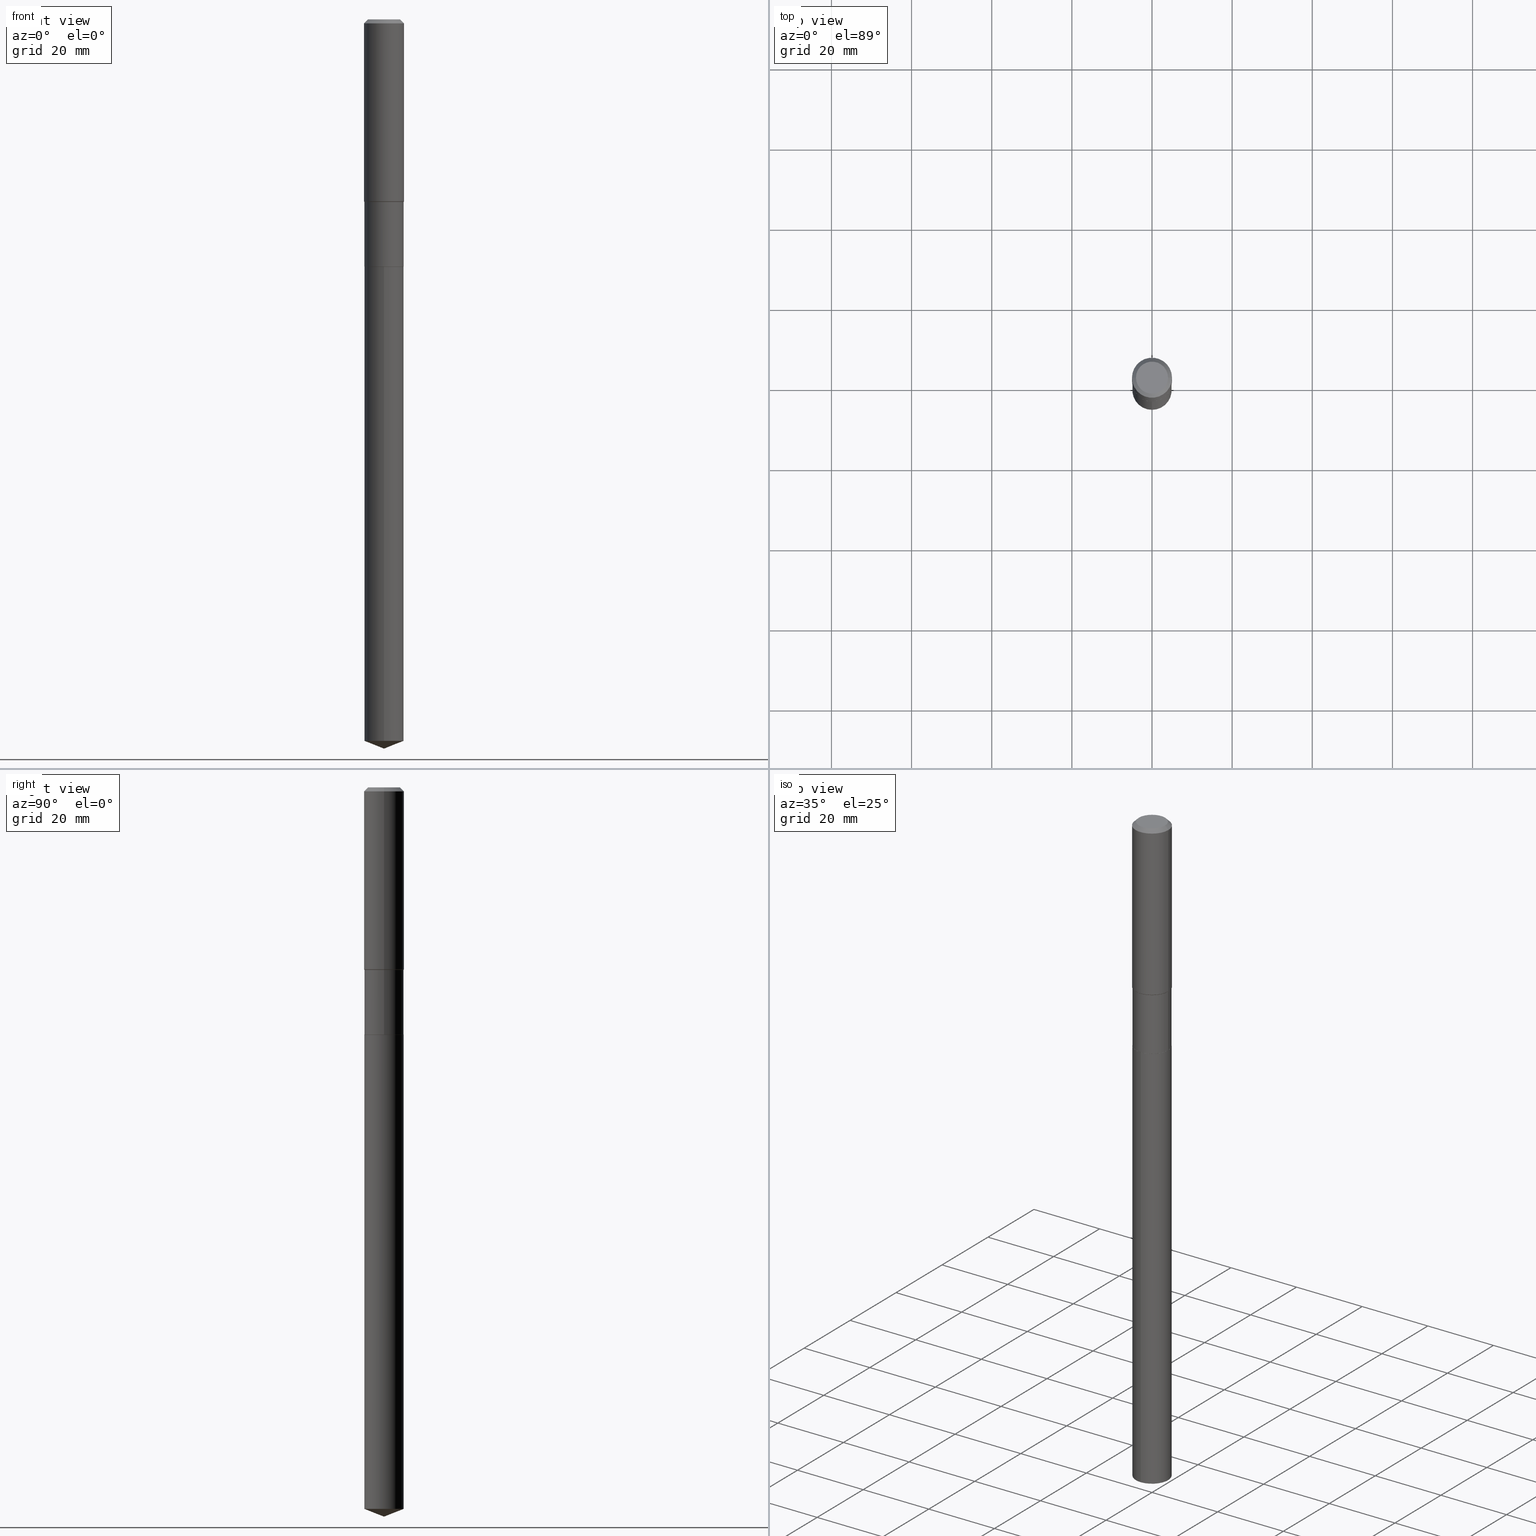
[diagram: canonical four-view strip — front | top / right | iso, engineering-drawing reading convention]
A machine part, canonical four-view strip (front | top / right | iso — engineering-drawing reading convention). The complete STEP part file that produces these views, byte-faithful:
ISO-10303-21;
HEADER;
FILE_DESCRIPTION (( 'STEP AP203' ),
    '1' );
FILE_NAME ('66777.STEP',
    '2024-04-25T05:58:49',
    ( '' ),
    ( '' ),
    'SwSTEP 2.0',
    'SolidWorks 2023',
    '' );
FILE_SCHEMA (( 'CONFIG_CONTROL_DESIGN' ));
ENDSEC;

DATA;
#1 = CARTESIAN_POINT ( 'NONE',  ( 0.1923999999999999877, -9.823282746835183179E-15, -2.428699999999999637 ) ) ;
#2 = FACE_OUTER_BOUND ( 'NONE', #372, .T. ) ;
#3 = ADVANCED_FACE ( 'NONE', ( #223 ), #257, .T. ) ;
#4 = DIRECTION ( 'NONE',  ( 1.000000000000000000, -6.982962677686261977E-15, 0.000000000000000000 ) ) ;
#5 = CARTESIAN_POINT ( 'NONE',  ( 5.939310089581840960E-29, -8.479760727648346701E-15, -2.428699999999999637 ) ) ;
#6 = CYLINDRICAL_SURFACE ( 'NONE', #9, 0.1968500000000001082 ) ;
#7 = EDGE_CURVE ( 'NONE', #178, #410, #399, .T. ) ;
#8 = UNCERTAINTY_MEASURE_WITH_UNIT (LENGTH_MEASURE( 1.000000000000000082E-05 ), #351, 'distance_accuracy_value', 'NONE');
#9 = AXIS2_PLACEMENT_3D ( 'NONE', #18, #489, #70 ) ;
#10 = CC_DESIGN_SECURITY_CLASSIFICATION ( #470, ( #58 ) ) ;
#11 = DIRECTION ( 'NONE',  ( 1.000000000000000000, -6.982962677686267499E-15, 0.000000000000000000 ) ) ;
#12 =( NAMED_UNIT ( * ) PLANE_ANGLE_UNIT ( ) SI_UNIT ( $, .RADIAN. ) );
#13 = APPROVAL_DATE_TIME ( #361, #352 ) ;
#14 = VECTOR ( 'NONE', #111, 39.37007874015748143 ) ;
#15 = EDGE_CURVE ( 'NONE', #71, #362, #364, .T. ) ;
#16 = CLOSED_SHELL ( 'NONE', ( #197, #17, #90, #212, #331, #56, #472, #320, #395, #439, #381, #307 ) ) ;
#17 = ADVANCED_FACE ( 'NONE', ( #301 ), #471, .T. ) ;
#18 = CARTESIAN_POINT ( 'NONE',  ( 0.000000000000000000, 0.000000000000000000, 0.000000000000000000 ) ) ;
#19 = VERTEX_POINT ( 'NONE', #447 ) ;
#20 = AXIS2_PLACEMENT_3D ( 'NONE', #457, #387, #392 ) ;
#21 = ORIENTED_EDGE ( 'NONE', *, *, #318, .T. ) ;
#22 = PERSON_AND_ORGANIZATION_ROLE ( 'design_supplier' ) ;
#23 = EDGE_LOOP ( 'NONE', ( #438, #140, #378, #309 ) ) ;
#24 = PLANE ( 'NONE',  #267 ) ;
#25 = VERTEX_POINT ( 'NONE', #380 ) ;
#26 = DIRECTION ( 'NONE',  ( 2.445468806185136597E-29, -3.491481338843145583E-15, -1.000000000000000000 ) ) ;
#27 = ORIENTED_EDGE ( 'NONE', *, *, #350, .T. ) ;
#28 = DIRECTION ( 'NONE',  ( -6.982962677686265133E-15, -1.000000000000000000, 2.832398127179122126E-15 ) ) ;
#29 = CARTESIAN_POINT ( 'NONE',  ( -0.1923999999999999877, -7.110027276871802632E-15, -2.428699999999999637 ) ) ;
#30 = PERSON ( 'UNSPECIFIED', 'UNSPECIFIED', 'UNSPECIFIED', ('UNSPECIFIED'), ('UNSPECIFIED'), ('UNSPECIFIED') ) ;
#31 = CONICAL_SURFACE ( 'NONE', #77, 99.94676754584099854, 1.195550537616123066 ) ;
#32 = CC_DESIGN_PERSON_AND_ORGANIZATION_ASSIGNMENT ( #48, #198, ( #359 ) ) ;
#33 = LOCAL_TIME ( 1, 58, 49.00000000000000000, #92 ) ;
#34 = ORIENTED_EDGE ( 'NONE', *, *, #50, .T. ) ;
#35 = CIRCLE ( 'NONE', #163, 0.1574800000000000089 ) ;
#36 = FACE_OUTER_BOUND ( 'NONE', #181, .T. ) ;
#37 = CARTESIAN_POINT ( 'NONE',  ( -0.1928999999999999326, 1.370636937281232780E-15, -9.488625789101710361E-30 ) ) ;
#38 = CARTESIAN_POINT ( 'NONE',  ( -7.875561645839397691E-28, 1.124447188584028258E-13, 32.20507874015748229 ) ) ;
#39 = LINE ( 'NONE', #217, #430 ) ;
#40 = DIRECTION ( 'NONE',  ( -6.982962677686265133E-15, -1.000000000000000000, 5.664796254358244252E-15 ) ) ;
#41 = ORIENTED_EDGE ( 'NONE', *, *, #290, .F. ) ;
#42 = EDGE_CURVE ( 'NONE', #19, #291, #466, .T. ) ;
#43 = VECTOR ( 'NONE', #204, 39.37007874015748143 ) ;
#44 = APPROVAL_DATE_TIME ( #348, #434 ) ;
#45 = ORIENTED_EDGE ( 'NONE', *, *, #94, .F. ) ;
#46 = AXIS2_PLACEMENT_3D ( 'NONE', #179, #173, #473 ) ;
#47 = DIRECTION ( 'NONE',  ( 6.611014441532076844E-15, 0.9304175679820284595, 0.3665012267242871991 ) ) ;
#48 = PERSON_AND_ORGANIZATION ( #30, #130 ) ;
#49 = ORIENTED_EDGE ( 'NONE', *, *, #459, .T. ) ;
#50 = EDGE_CURVE ( 'NONE', #213, #103, #292, .T. ) ;
#51 = CARTESIAN_POINT ( 'NONE',  ( 0.000000000000000000, 0.000000000000000000, 0.000000000000000000 ) ) ;
#52 = AXIS2_PLACEMENT_3D ( 'NONE', #391, #315, #278 ) ;
#53 = DIRECTION ( 'NONE',  ( -6.982962677686265133E-15, -1.000000000000000000, 2.832398127179122126E-15 ) ) ;
#54 = CC_DESIGN_DATE_AND_TIME_ASSIGNMENT ( #244, #316, ( #470 ) ) ;
#55 = CARTESIAN_POINT ( 'NONE',  ( 4.372865045779949954E-29, -6.243292356052368154E-15, -1.788149999999999240 ) ) ;
#56 = ADVANCED_FACE ( 'NONE', ( #440 ), #402, .T. ) ;
#57 = CIRCLE ( 'NONE', #411, 0.1928999999999999881 ) ;
#58 = PRODUCT_DEFINITION_FORMATION_WITH_SPECIFIED_SOURCE ( 'ANY', '', #359, .NOT_KNOWN. ) ;
#59 = VECTOR ( 'NONE', #158, 39.37007874015748143 ) ;
#60 = EDGE_CURVE ( 'NONE', #127, #456, #295, .T. ) ;
#61 = APPROVAL_STATUS ( 'not_yet_approved' ) ;
#62 = CARTESIAN_POINT ( 'NONE',  ( -9.427742298522567634E-47, 1.346031739168368355E-32, 3.855188123715870730E-18 ) ) ;
#63 = CALENDAR_DATE ( 2024, 25, 4 ) ;
#64 = ORIENTED_EDGE ( 'NONE', *, *, #459, .F. ) ;
#65 = CARTESIAN_POINT ( 'NONE',  ( -7.875561645839397691E-28, 1.124447188584028258E-13, 32.20507874015748229 ) ) ;
#66 = LOCAL_TIME ( 1, 58, 49.00000000000000000, #353 ) ;
#67 = DIRECTION ( 'NONE',  ( -2.445468806185136597E-29, 3.491481338843145583E-15, 1.000000000000000000 ) ) ;
#68 = ORIENTED_EDGE ( 'NONE', *, *, #209, .F. ) ;
#69 = DIRECTION ( 'NONE',  ( -2.445442848827032230E-29, 3.491518511257351844E-15, 1.000000000000000000 ) ) ;
#70 = DIRECTION ( 'NONE',  ( 1.000000000000000000, -6.982962677686266711E-15, 4.876176775795935793E-29 ) ) ;
#71 = VERTEX_POINT ( 'NONE', #191 ) ;
#72 = CARTESIAN_POINT ( 'NONE',  ( -0.1928999999999999049, -4.886446770059567816E-15, -1.792099999999999804 ) ) ;
#73 = ADVANCED_FACE ( 'NONE', ( #437 ), #280, .T. ) ;
#74 = ORIENTED_EDGE ( 'NONE', *, *, #81, .F. ) ;
#75 = CARTESIAN_POINT ( 'NONE',  ( 1.370636937281406526E-15, 0.1928999999999752579, -7.089014669253879575 ) ) ;
#76 = DIRECTION ( 'NONE',  ( -2.445468806185136597E-29, 3.491481338843145583E-15, 1.000000000000000000 ) ) ;
#77 = AXIS2_PLACEMENT_3D ( 'NONE', #65, #215, #327 ) ;
#78 = CYLINDRICAL_SURFACE ( 'NONE', #311, 0.1968500000000001082 ) ;
#79 = CYLINDRICAL_SURFACE ( 'NONE', #208, 0.1928999999999999881 ) ;
#80 = ORIENTED_EDGE ( 'NONE', *, *, #250, .F. ) ;
#81 = EDGE_CURVE ( 'NONE', #436, #291, #220, .T. ) ;
#82 = FACE_OUTER_BOUND ( 'NONE', #210, .T. ) ;
#83 = ORIENTED_EDGE ( 'NONE', *, *, #389, .F. ) ;
#84 = PERSON_AND_ORGANIZATION ( #30, #130 ) ;
#85 = AXIS2_PLACEMENT_3D ( 'NONE', #266, #180, #334 ) ;
#86 = CARTESIAN_POINT ( 'NONE',  ( 1.733584327079245706E-28, -2.475133566363245004E-14, -7.089014669253878687 ) ) ;
#87 = ORIENTED_EDGE ( 'NONE', *, *, #160, .T. ) ;
#88 = AXIS2_PLACEMENT_3D ( 'NONE', #118, #67, #105 ) ;
#89 = CALENDAR_DATE ( 2024, 25, 4 ) ;
#90 = ADVANCED_FACE ( 'NONE', ( #186 ), #78, .T. ) ;
#91 = DIRECTION ( 'NONE',  ( -2.445468806185136597E-29, 3.491481338843145583E-15, 1.000000000000000000 ) ) ;
#92 = COORDINATED_UNIVERSAL_TIME_OFFSET ( 5, 0, .BEHIND. ) ;
#93 = VECTOR ( 'NONE', #265, 39.37007874015748143 ) ;
#94 = EDGE_CURVE ( 'NONE', #25, #189, #35, .T. ) ;
#95 = PERSON_AND_ORGANIZATION ( #30, #130 ) ;
#96 = DIRECTION ( 'NONE',  ( 1.000000000000000000, -6.982962677686265922E-15, 0.000000000000000000 ) ) ;
#97 = CIRCLE ( 'NONE', #385, 0.1574800000000000089 ) ;
#98 = AXIS2_PLACEMENT_3D ( 'NONE', #86, #239, #418 ) ;
#99 = EDGE_CURVE ( 'NONE', #410, #178, #207, .T. ) ;
#100 = ORIENTED_EDGE ( 'NONE', *, *, #131, .F. ) ;
#101 = DIRECTION ( 'NONE',  ( -1.000000000000000000, 6.982962677686265922E-15, 0.000000000000000000 ) ) ;
#102 = PERSON_AND_ORGANIZATION ( #30, #130 ) ;
#103 = VERTEX_POINT ( 'NONE', #416 ) ;
#104 = FACE_OUTER_BOUND ( 'NONE', #155, .T. ) ;
#105 = DIRECTION ( 'NONE',  ( 1.000000000000000000, -6.982962677686267499E-15, 4.876176775795936353E-29 ) ) ;
#106 = DIRECTION ( 'NONE',  ( -1.000000000000000000, 6.982962677686265922E-15, 0.000000000000000000 ) ) ;
#107 = ORIENTED_EDGE ( 'NONE', *, *, #142, .F. ) ;
#108 = VECTOR ( 'NONE', #117, 39.37007874015748143 ) ;
#109 = LOCAL_TIME ( 1, 58, 49.00000000000000000, #134 ) ;
#110 = CARTESIAN_POINT ( 'NONE',  ( 0.1928999999999999326, -1.347013500525680471E-15, 9.406145000510357801E-30 ) ) ;
#111 = DIRECTION ( 'NONE',  ( 0.7071067811865452413, -7.319954787623248157E-15, -0.7071067811865497932 ) ) ;
#112 = ORIENTED_EDGE ( 'NONE', *, *, #358, .T. ) ;
#113 = CARTESIAN_POINT ( 'NONE',  ( 5.938087355178748159E-29, -8.478014986978924408E-15, -2.428199999999999914 ) ) ;
#114 = CARTESIAN_POINT ( 'NONE',  ( 1.752159801184568849E-28, -2.501673013315892775E-14, -7.165000000000000036 ) ) ;
#115 = LINE ( 'NONE', #151, #394 ) ;
#116 = ORIENTED_EDGE ( 'NONE', *, *, #42, .T. ) ;
#117 = DIRECTION ( 'NONE',  ( -0.7071067811865413555, 7.493145998870332072E-15, 0.7071067811865536790 ) ) ;
#118 = CARTESIAN_POINT ( 'NONE',  ( 0.000000000000000000, 0.000000000000000000, 0.000000000000000000 ) ) ;
#119 = DIRECTION ( 'NONE',  ( -2.438088387897960049E-29, 3.491481338843145188E-15, 1.000000000000000000 ) ) ;
#120 = ORIENTED_EDGE ( 'NONE', *, *, #99, .F. ) ;
#121 = DIRECTION ( 'NONE',  ( -2.445468806185136597E-29, 3.491481338843145583E-15, 1.000000000000000000 ) ) ;
#122 = CIRCLE ( 'NONE', #233, 0.1928999999999999881 ) ;
#123 = APPROVAL_PERSON_ORGANIZATION ( #84, #434, #237 ) ;
#124 = CARTESIAN_POINT ( 'NONE',  ( 0.1968500000000000250, -1.512055823412797189E-15, -0.03937000000000026589 ) ) ;
#125 = LINE ( 'NONE', #72, #108 ) ;
#126 = DIRECTION ( 'NONE',  ( -2.445468806185136597E-29, 3.491481338843145583E-15, 1.000000000000000000 ) ) ;
#127 = VERTEX_POINT ( 'NONE', #129 ) ;
#128 = VECTOR ( 'NONE', #405, 39.37007874015748143 ) ;
#129 = CARTESIAN_POINT ( 'NONE',  ( 1.752159801184568400E-28, -2.501673013315892144E-14, -7.165000000000000036 ) ) ;
#130 = ORGANIZATION ( 'UNSPECIFIED', 'UNSPECIFIED', '' ) ;
#131 = EDGE_CURVE ( 'NONE', #224, #71, #145, .T. ) ;
#132 = LINE ( 'NONE', #355, #162 ) ;
#133 = APPROVAL_STATUS ( 'not_yet_approved' ) ;
#134 = COORDINATED_UNIVERSAL_TIME_OFFSET ( 5, 0, .BEHIND. ) ;
#135 = EDGE_LOOP ( 'NONE', ( #325, #263, #349, #475 ) ) ;
#136 = APPROVAL_PERSON_ORGANIZATION ( #169, #294, #288 ) ;
#137 = ORIENTED_EDGE ( 'NONE', *, *, #283, .F. ) ;
#138 = PRODUCT_RELATED_PRODUCT_CATEGORY ( 'detail', '', ( #359 ) ) ;
#139 = VERTEX_POINT ( 'NONE', #219 ) ;
#140 = ORIENTED_EDGE ( 'NONE', *, *, #264, .F. ) ;
#141 = DIRECTION ( 'NONE',  ( 2.445442848827032230E-29, -3.491518511257351844E-15, -1.000000000000000000 ) ) ;
#142 = EDGE_CURVE ( 'NONE', #291, #19, #463, .T. ) ;
#143 = DIRECTION ( 'NONE',  ( -2.445468806185136877E-29, 3.491481338843145188E-15, 1.000000000000000000 ) ) ;
#144 = DIRECTION ( 'NONE',  ( -2.445468806185136877E-29, 3.491481338843145188E-15, 1.000000000000000000 ) ) ;
#145 = CIRCLE ( 'NONE', #20, 0.1968500000000002192 ) ;
#146 = CC_DESIGN_APPROVAL ( #352, ( #58 ) ) ;
#147 = CARTESIAN_POINT ( 'NONE',  ( 0.1968500000000001082, -1.374596203102542397E-15, 9.598753983154305062E-30 ) ) ;
#148 = FACE_OUTER_BOUND ( 'NONE', #401, .T. ) ;
#149 = DIRECTION ( 'NONE',  ( 1.000000000000000000, -6.982962677686264344E-15, 0.000000000000000000 ) ) ;
#150 = EDGE_LOOP ( 'NONE', ( #45, #324, #112, #368 ) ) ;
#151 = CARTESIAN_POINT ( 'NONE',  ( -0.1968500000000001082, 1.398703375343757985E-15, -9.682923725166787881E-30 ) ) ;
#152 = DIRECTION ( 'NONE',  ( 1.000000000000000000, -6.982962677686267499E-15, 0.000000000000000000 ) ) ;
#153 = DIRECTION ( 'NONE',  ( -2.445442848827032230E-29, 3.491518511257351844E-15, 1.000000000000000000 ) ) ;
#154 = PLANE ( 'NONE',  #393 ) ;
#155 = EDGE_LOOP ( 'NONE', ( #441, #477, #277 ) ) ;
#156 = CARTESIAN_POINT ( 'NONE',  ( 4.382524647564382413E-29, -6.257083707340800005E-15, -1.792099999999999804 ) ) ;
#157 = CARTESIAN_POINT ( 'NONE',  ( 9.627810689950948900E-31, -1.374596203102555561E-16, -0.03937000000000026589 ) ) ;
#158 = DIRECTION ( 'NONE',  ( 0.7071067811865413555, -2.468850131082192374E-15, 0.7071067811865536790 ) ) ;
#159 = MANIFOLD_SOLID_BREP ( 'Body-Move/Copy2[2]', #16 ) ;
#160 = EDGE_CURVE ( 'NONE', #71, #224, #435, .T. ) ;
#161 = PERSON_AND_ORGANIZATION ( #30, #130 ) ;
#162 = VECTOR ( 'NONE', #47, 39.37007874015748143 ) ;
#163 = AXIS2_PLACEMENT_3D ( 'NONE', #62, #211, #347 ) ;
#164 = DIRECTION ( 'NONE',  ( 1.000000000000000000, -6.982962677686265922E-15, 0.000000000000000000 ) ) ;
#165 = AXIS2_PLACEMENT_3D ( 'NONE', #373, #454, #297 ) ;
#166 = PERSON_AND_ORGANIZATION_ROLE ( 'classification_officer' ) ;
#167 = APPROVAL_DATE_TIME ( #365, #294 ) ;
#168 = ADVANCED_FACE ( 'NONE', ( #104 ), #31, .T. ) ;
#169 = PERSON_AND_ORGANIZATION ( #30, #130 ) ;
#170 = ORIENTED_EDGE ( 'NONE', *, *, #60, .F. ) ;
#171 = CIRCLE ( 'NONE', #98, 0.1928999999999999881 ) ;
#172 = AXIS2_PLACEMENT_3D ( 'NONE', #375, #328, #101 ) ;
#173 = DIRECTION ( 'NONE',  ( -2.445468806185136597E-29, 3.491481338843145583E-15, 1.000000000000000000 ) ) ;
#174 = ORIENTED_EDGE ( 'NONE', *, *, #142, .T. ) ;
#175 = ADVANCED_FACE ( 'NONE', ( #367 ), #24, .F. ) ;
#176 = CARTESIAN_POINT ( 'NONE',  ( 5.939310089581840960E-29, -8.479760727648346701E-15, -2.428699999999999637 ) ) ;
#177 = DIRECTION ( 'NONE',  ( 1.000000000000000000, -6.982962677686265922E-15, 4.876176775795935793E-29 ) ) ;
#178 = VERTEX_POINT ( 'NONE', #452 ) ;
#179 = CARTESIAN_POINT ( 'NONE',  ( 5.939310089581840960E-29, -8.479760727648346701E-15, -2.428699999999999637 ) ) ;
#180 = DIRECTION ( 'NONE',  ( -2.445468806185136597E-29, 3.491481338843145583E-15, 1.000000000000000000 ) ) ;
#181 = EDGE_LOOP ( 'NONE', ( #80, #49, #252, #100 ) ) ;
#182 = AXIS2_PLACEMENT_3D ( 'NONE', #157, #308, #342 ) ;
#183 = CARTESIAN_POINT ( 'NONE',  ( -0.1574800000000000089, 1.168406772637159618E-15, 3.855188123707939751E-18 ) ) ;
#184 = LOCAL_TIME ( 1, 58, 49.00000000000000000, #426 ) ;
#185 = CONICAL_SURFACE ( 'NONE', #465, 0.1968500000000000250, 0.7853981633974450594 ) ;
#186 = FACE_OUTER_BOUND ( 'NONE', #338, .T. ) ;
#187 = EDGE_CURVE ( 'NONE', #460, #213, #453, .T. ) ;
#188 = DIRECTION ( 'NONE',  ( -2.445442848827032230E-29, 3.491518511257351844E-15, 1.000000000000000000 ) ) ;
#189 = VERTEX_POINT ( 'NONE', #183 ) ;
#190 = DIRECTION ( 'NONE',  ( 1.000000000000000000, -6.982962677686261977E-15, 0.000000000000000000 ) ) ;
#191 = CARTESIAN_POINT ( 'NONE',  ( 0.1968500000000002192, -7.617888559154910551E-15, -1.788149999999999240 ) ) ;
#192 = DIRECTION ( 'NONE',  ( -0.7071067811865452413, 2.468850131082233000E-15, -0.7071067811865497932 ) ) ;
#193 = LINE ( 'NONE', #448, #481 ) ;
#194 = DATE_AND_TIME ( #357, #33 ) ;
#195 = EDGE_LOOP ( 'NONE', ( #68, #488, #34, #64 ) ) ;
#196 = FACE_OUTER_BOUND ( 'NONE', #135, .T. ) ;
#197 = ADVANCED_FACE ( 'NONE', ( #343 ), #317, .T. ) ;
#198 = PERSON_AND_ORGANIZATION_ROLE ( 'design_owner' ) ;
#199 = EDGE_LOOP ( 'NONE', ( #255, #120 ) ) ;
#200 = CIRCLE ( 'NONE', #279, 0.1968500000000000250 ) ;
#201 = DIRECTION ( 'NONE',  ( -2.445468806185136597E-29, 3.491481338843145583E-15, 1.000000000000000000 ) ) ;
#202 = APPLICATION_PROTOCOL_DEFINITION ( 'international standard', 'config_control_design', 1994, #274 ) ;
#203 = AXIS2_PLACEMENT_3D ( 'NONE', #397, #69, #28 ) ;
#204 = DIRECTION ( 'NONE',  ( -2.445442848827032230E-29, 3.491518511257351844E-15, 1.000000000000000000 ) ) ;
#205 =( LENGTH_UNIT ( ) NAMED_UNIT ( * ) SI_UNIT ( $, .METRE. ) );
#206 = SHAPE_DEFINITION_REPRESENTATION ( #356, #354 ) ;
#207 = CIRCLE ( 'NONE', #248, 0.1923999999999999877 ) ;
#208 = AXIS2_PLACEMENT_3D ( 'NONE', #482, #400, #382 ) ;
#209 = EDGE_CURVE ( 'NONE', #460, #139, #379, .T. ) ;
#210 = EDGE_LOOP ( 'NONE', ( #404, #490, #41, #235 ) ) ;
#211 = DIRECTION ( 'NONE',  ( -2.445468806185136597E-29, 3.491481338843145583E-15, 1.000000000000000000 ) ) ;
#212 = ADVANCED_FACE ( 'NONE', ( #2 ), #281, .T. ) ;
#213 = VERTEX_POINT ( 'NONE', #484 ) ;
#214 = CC_DESIGN_APPROVAL ( #294, ( #470 ) ) ;
#215 = DIRECTION ( 'NONE',  ( -2.445442848827032230E-29, 3.491518511257351844E-15, 1.000000000000000000 ) ) ;
#216 = ORIENTED_EDGE ( 'NONE', *, *, #7, .T. ) ;
#217 = CARTESIAN_POINT ( 'NONE',  ( -0.1923999999999999877, -7.112676504045913045E-15, -2.428699999999999637 ) ) ;
#218 = ORIENTED_EDGE ( 'NONE', *, *, #423, .F. ) ;
#219 = CARTESIAN_POINT ( 'NONE',  ( -0.1928999999999999049, -5.996912409878630018E-15, -1.792099999999999804 ) ) ;
#220 = LINE ( 'NONE', #406, #93 ) ;
#221 = PLANE ( 'NONE',  #165 ) ;
#222 = ORIENTED_EDGE ( 'NONE', *, *, #160, .F. ) ;
#223 = FACE_OUTER_BOUND ( 'NONE', #480, .T. ) ;
#224 = VERTEX_POINT ( 'NONE', #341 ) ;
#225 = CC_DESIGN_PERSON_AND_ORGANIZATION_ASSIGNMENT ( #95, #166, ( #470 ) ) ;
#226 = CARTESIAN_POINT ( 'NONE',  ( 0.000000000000000000, 0.000000000000000000, 0.000000000000000000 ) ) ;
#227 = DIRECTION ( 'NONE',  ( 1.000000000000000000, -6.982962677686267499E-15, 4.876176775795936353E-29 ) ) ;
#228 = CYLINDRICAL_SURFACE ( 'NONE', #469, 0.1928999999999999326 ) ;
#229 = CARTESIAN_POINT ( 'NONE',  ( 5.938087355178748159E-29, -8.478014986978924408E-15, -2.428199999999999914 ) ) ;
#230 = MECHANICAL_CONTEXT ( 'NONE', #242, 'mechanical' ) ;
#231 = CC_DESIGN_DATE_AND_TIME_ASSIGNMENT ( #194, #345, ( #245 ) ) ;
#232 = DIRECTION ( 'NONE',  ( 1.000000000000000000, -6.982962677686264344E-15, 0.000000000000000000 ) ) ;
#233 = AXIS2_PLACEMENT_3D ( 'NONE', #113, #260, #149 ) ;
#234 = CLOSED_SHELL ( 'NONE', ( #360, #73, #168, #3, #175 ) ) ;
#235 = ORIENTED_EDGE ( 'NONE', *, *, #50, .F. ) ;
#236 = FACE_OUTER_BOUND ( 'NONE', #485, .T. ) ;
#237 = APPROVAL_ROLE ( '' ) ;
#238 = EDGE_CURVE ( 'NONE', #103, #71, #330, .T. ) ;
#239 = DIRECTION ( 'NONE',  ( -2.445442848827032230E-29, 3.491518511257351844E-15, 1.000000000000000000 ) ) ;
#240 = CARTESIAN_POINT ( 'NONE',  ( -1.347013500525621110E-15, -0.1929000000000084536, -2.428699999999999193 ) ) ;
#241 = AXIS2_PLACEMENT_3D ( 'NONE', #428, #91, #4 ) ;
#242 = APPLICATION_CONTEXT ( 'configuration controlled 3d designs of mechanical parts and assemblies' ) ;
#243 = DIRECTION ( 'NONE',  ( -2.445468806185136597E-29, 3.491481338843145583E-15, 1.000000000000000000 ) ) ;
#244 = DATE_AND_TIME ( #63, #109 ) ;
#245 = PRODUCT_DEFINITION ( 'UNKNOWN', '', #58, #390 ) ;
#246 = AXIS2_PLACEMENT_3D ( 'NONE', #229, #121, #232 ) ;
#247 = CALENDAR_DATE ( 2024, 25, 4 ) ;
#248 = AXIS2_PLACEMENT_3D ( 'NONE', #5, #201, #461 ) ;
#249 = ORIENTED_EDGE ( 'NONE', *, *, #131, .T. ) ;
#250 = EDGE_CURVE ( 'NONE', #139, #224, #125, .T. ) ;
#251 = ORIENTED_EDGE ( 'NONE', *, *, #486, .F. ) ;
#252 = ORIENTED_EDGE ( 'NONE', *, *, #238, .T. ) ;
#253 = DIRECTION ( 'NONE',  ( -6.982962677686268288E-15, -1.000000000000000000, 3.498627837349968329E-15 ) ) ;
#254 = LINE ( 'NONE', #1, #337 ) ;
#255 = ORIENTED_EDGE ( 'NONE', *, *, #7, .F. ) ;
#256 = VECTOR ( 'NONE', #143, 39.37007874015748143 ) ;
#257 = CYLINDRICAL_SURFACE ( 'NONE', #464, 0.1928999999999999881 ) ;
#258 = FACE_OUTER_BOUND ( 'NONE', #199, .T. ) ;
#259 = ORIENTED_EDGE ( 'NONE', *, *, #302, .T. ) ;
#260 = DIRECTION ( 'NONE',  ( -2.445468806185136597E-29, 3.491481338843145583E-15, 1.000000000000000000 ) ) ;
#261 = DIRECTION ( 'NONE',  ( -6.497071151882128514E-15, -0.9304175679820259059, 0.3665012267242937494 ) ) ;
#262 = CARTESIAN_POINT ( 'NONE',  ( 0.1968500000000000250, -1.487948651171581601E-15, -0.03937000000000026589 ) ) ;
#263 = ORIENTED_EDGE ( 'NONE', *, *, #99, .T. ) ;
#264 = EDGE_CURVE ( 'NONE', #189, #25, #97, .T. ) ;
#265 = DIRECTION ( 'NONE',  ( -2.445442848827032230E-29, 3.491518511257351844E-15, 1.000000000000000000 ) ) ;
#266 = CARTESIAN_POINT ( 'NONE',  ( 4.382524647564382413E-29, -6.257083707340800005E-15, -1.792099999999999804 ) ) ;
#267 = AXIS2_PLACEMENT_3D ( 'NONE', #474, #141, #442 ) ;
#268 = CARTESIAN_POINT ( 'NONE',  ( 5.939310089581840960E-29, -8.479760727648346701E-15, -2.428699999999999637 ) ) ;
#269 = CONICAL_SURFACE ( 'NONE', #424, 0.1928999999999999049, 0.7853981633974396193 ) ;
#270 = CC_DESIGN_PERSON_AND_ORGANIZATION_ASSIGNMENT ( #102, #431, ( #58 ) ) ;
#271 = VECTOR ( 'NONE', #261, 39.37007874015748143 ) ;
#272 = DIRECTION ( 'NONE',  ( -0.7071067811866199593, 7.493145998870616062E-15, 0.7071067811864750752 ) ) ;
#273 = ORIENTED_EDGE ( 'NONE', *, *, #81, .T. ) ;
#274 = APPLICATION_CONTEXT ( 'configuration controlled 3d designs of mechanical parts and assemblies' ) ;
#275 = EDGE_CURVE ( 'NONE', #213, #460, #122, .T. ) ;
#276 = ORIENTED_EDGE ( 'NONE', *, *, #15, .T. ) ;
#277 = ORIENTED_EDGE ( 'NONE', *, *, #350, .F. ) ;
#278 = DIRECTION ( 'NONE',  ( 1.000000000000000000, -6.982962677686267499E-15, 0.000000000000000000 ) ) ;
#279 = AXIS2_PLACEMENT_3D ( 'NONE', #409, #243, #164 ) ;
#280 = CONICAL_SURFACE ( 'NONE', #336, 99.94676754584099854, 1.195550537616123066 ) ;
#281 = CONICAL_SURFACE ( 'NONE', #333, 0.1928999999999999049, 0.7853981633974396193 ) ;
#282 = LENGTH_MEASURE_WITH_UNIT ( LENGTH_MEASURE( 0.02539999999999999897 ), #205 );
#283 = EDGE_CURVE ( 'NONE', #293, #362, #200, .T. ) ;
#284 = DIRECTION ( 'NONE',  ( 0.000000000000000000, 0.000000000000000000, 1.000000000000000000 ) ) ;
#285 = CALENDAR_DATE ( 2024, 25, 4 ) ;
#286 = LOCAL_TIME ( 1, 58, 49.00000000000000000, #433 ) ;
#287 = SECURITY_CLASSIFICATION_LEVEL ( 'unclassified' ) ;
#288 = APPROVAL_ROLE ( '' ) ;
#289 = ORIENTED_EDGE ( 'NONE', *, *, #250, .T. ) ;
#290 = EDGE_CURVE ( 'NONE', #103, #139, #376, .T. ) ;
#291 = VERTEX_POINT ( 'NONE', #432 ) ;
#292 = LINE ( 'NONE', #110, #256 ) ;
#293 = VERTEX_POINT ( 'NONE', #314 ) ;
#294 = APPROVAL ( #61, 'UNSPECIFIED' ) ;
#295 = LINE ( 'NONE', #114, #271 ) ;
#296 = CIRCLE ( 'NONE', #85, 0.1928999999999999049 ) ;
#297 = DIRECTION ( 'NONE',  ( -1.000000000000000000, 6.982962677686265922E-15, -4.876176775795935793E-29 ) ) ;
#298 =( GEOMETRIC_REPRESENTATION_CONTEXT ( 3 ) GLOBAL_UNCERTAINTY_ASSIGNED_CONTEXT ( ( #8 ) ) GLOBAL_UNIT_ASSIGNED_CONTEXT ( ( #351, #12, #312 ) ) REPRESENTATION_CONTEXT ( 'NONE', 'WORKASPACE' ) );
#299 = EDGE_LOOP ( 'NONE', ( #216, #419, #326, #83 ) ) ;
#300 = DIRECTION ( 'NONE',  ( 1.000000000000000000, -6.982962677686265922E-15, 4.876223630392693006E-29 ) ) ;
#301 = FACE_OUTER_BOUND ( 'NONE', #150, .T. ) ;
#302 = EDGE_CURVE ( 'NONE', #127, #436, #132, .T. ) ;
#303 = LINE ( 'NONE', #262, #14 ) ;
#304 = DIRECTION ( 'NONE',  ( -6.982962677686265133E-15, -1.000000000000000000, 2.832398127179122126E-15 ) ) ;
#305 = CARTESIAN_POINT ( 'NONE',  ( -1.347013500525507514E-15, -0.1929000000000247739, -7.089014669253877798 ) ) ;
#306 = CARTESIAN_POINT ( 'NONE',  ( 5.939310089581840960E-29, -8.479760727648346701E-15, -2.428699999999999637 ) ) ;
#307 = ADVANCED_FACE ( 'NONE', ( #196 ), #363, .T. ) ;
#308 = DIRECTION ( 'NONE',  ( -2.445468806185136597E-29, 3.491481338843145583E-15, 1.000000000000000000 ) ) ;
#309 = ORIENTED_EDGE ( 'NONE', *, *, #283, .T. ) ;
#310 = APPROVAL_STATUS ( 'not_yet_approved' ) ;
#311 = AXIS2_PLACEMENT_3D ( 'NONE', #226, #340, #396 ) ;
#312 =( NAMED_UNIT ( * ) SI_UNIT ( $, .STERADIAN. ) SOLID_ANGLE_UNIT ( ) );
#313 = CC_DESIGN_PERSON_AND_ORGANIZATION_ASSIGNMENT ( #468, #22, ( #58 ) ) ;
#314 = CARTESIAN_POINT ( 'NONE',  ( -0.1968500000000000250, -1.791672612837553291E-15, -0.03937000000000026589 ) ) ;
#315 = DIRECTION ( 'NONE',  ( -2.445468806185136597E-29, 3.491481338843145583E-15, 1.000000000000000000 ) ) ;
#316 = DATE_TIME_ROLE ( 'classification_date' ) ;
#317 = CONICAL_SURFACE ( 'NONE', #479, 0.1923999999999999877, 0.7853981633975507526 ) ;
#318 = EDGE_CURVE ( 'NONE', #456, #19, #425, .T. ) ;
#319 = CARTESIAN_POINT ( 'NONE',  ( 5.939310089581840960E-29, -8.479760727648346701E-15, -2.428699999999999637 ) ) ;
#320 = ADVANCED_FACE ( 'NONE', ( #236 ), #6, .T. ) ;
#321 = MANIFOLD_SOLID_BREP ( 'Body-Move/Copy2[1]', #234 ) ;
#322 = CIRCLE ( 'NONE', #182, 0.1968500000000000250 ) ;
#323 = CC_DESIGN_APPROVAL ( #434, ( #245 ) ) ;
#324 = ORIENTED_EDGE ( 'NONE', *, *, #449, .T. ) ;
#325 = ORIENTED_EDGE ( 'NONE', *, *, #371, .F. ) ;
#326 = ORIENTED_EDGE ( 'NONE', *, *, #275, .F. ) ;
#327 = DIRECTION ( 'NONE',  ( -6.982962677686268288E-15, -1.000000000000000000, 3.498627837349968329E-15 ) ) ;
#328 = DIRECTION ( 'NONE',  ( 2.445468806185136597E-29, -3.491481338843145583E-15, -1.000000000000000000 ) ) ;
#329 = ORIENTED_EDGE ( 'NONE', *, *, #423, .T. ) ;
#330 = LINE ( 'NONE', #450, #59 ) ;
#331 = ADVANCED_FACE ( 'NONE', ( #82 ), #228, .T. ) ;
#332 = ORIENTED_EDGE ( 'NONE', *, *, #94, .T. ) ;
#333 = AXIS2_PLACEMENT_3D ( 'NONE', #156, #383, #152 ) ;
#334 = DIRECTION ( 'NONE',  ( 1.000000000000000000, -6.982962677686267499E-15, 0.000000000000000000 ) ) ;
#335 = ORIENTED_EDGE ( 'NONE', *, *, #318, .F. ) ;
#336 = AXIS2_PLACEMENT_3D ( 'NONE', #38, #444, #253 ) ;
#337 = VECTOR ( 'NONE', #403, 39.37007874015748143 ) ;
#338 = EDGE_LOOP ( 'NONE', ( #87, #329, #346, #487 ) ) ;
#339 = CARTESIAN_POINT ( 'NONE',  ( 1.733584327079245706E-28, -2.475133566363245004E-14, -7.089014669253878687 ) ) ;
#340 = DIRECTION ( 'NONE',  ( -2.445468806185136597E-29, 3.491481338843145583E-15, 1.000000000000000000 ) ) ;
#341 = CARTESIAN_POINT ( 'NONE',  ( -0.1968500000000002192, -4.844588980708610367E-15, -1.788149999999999240 ) ) ;
#342 = DIRECTION ( 'NONE',  ( 1.000000000000000000, -6.982962677686265922E-15, 0.000000000000000000 ) ) ;
#343 = FACE_OUTER_BOUND ( 'NONE', #299, .T. ) ;
#344 = DIMENSIONAL_EXPONENTS ( 1.000000000000000000, 0.000000000000000000, 0.000000000000000000, 0.000000000000000000, 0.000000000000000000, 0.000000000000000000, 0.000000000000000000 ) ;
#345 = DATE_TIME_ROLE ( 'creation_date' ) ;
#346 = ORIENTED_EDGE ( 'NONE', *, *, #358, .F. ) ;
#347 = DIRECTION ( 'NONE',  ( 1.000000000000000000, -6.982962677686265922E-15, 4.876223630392693006E-29 ) ) ;
#348 = DATE_AND_TIME ( #285, #66 ) ;
#349 = ORIENTED_EDGE ( 'NONE', *, *, #389, .T. ) ;
#350 = EDGE_CURVE ( 'NONE', #436, #456, #57, .T. ) ;
#351 =( CONVERSION_BASED_UNIT ( 'INCH', #282 ) LENGTH_UNIT ( ) NAMED_UNIT ( #344 ) );
#352 = APPROVAL ( #310, 'UNSPECIFIED' ) ;
#353 = COORDINATED_UNIVERSAL_TIME_OFFSET ( 5, 0, .BEHIND. ) ;
#354 = ADVANCED_BREP_SHAPE_REPRESENTATION ( '66777', ( #321, #159, #455 ), #298 ) ;
#355 = CARTESIAN_POINT ( 'NONE',  ( 1.752172520273593896E-28, -2.501654957187415828E-14, -7.165000000000000036 ) ) ;
#356 = PRODUCT_DEFINITION_SHAPE ( 'NONE', 'NONE',  #245 ) ;
#357 = CALENDAR_DATE ( 2024, 25, 4 ) ;
#358 = EDGE_CURVE ( 'NONE', #362, #293, #322, .T. ) ;
#359 = PRODUCT ( '66777', '66777', '', ( #230 ) ) ;
#360 = ADVANCED_FACE ( 'NONE', ( #476 ), #79, .T. ) ;
#361 = DATE_AND_TIME ( #89, #184 ) ;
#362 = VERTEX_POINT ( 'NONE', #124 ) ;
#363 = CONICAL_SURFACE ( 'NONE', #241, 0.1923999999999999877, 0.7853981633975507526 ) ;
#364 = LINE ( 'NONE', #147, #415 ) ;
#365 = DATE_AND_TIME ( #247, #286 ) ;
#366 = ORIENTED_EDGE ( 'NONE', *, *, #42, .F. ) ;
#367 = FACE_OUTER_BOUND ( 'NONE', #445, .T. ) ;
#368 = ORIENTED_EDGE ( 'NONE', *, *, #386, .F. ) ;
#369 = CARTESIAN_POINT ( 'NONE',  ( 9.627810689950948900E-31, -1.374596203102555561E-16, -0.03937000000000026589 ) ) ;
#370 = DIRECTION ( 'NONE',  ( -2.445442848827032230E-29, 3.491518511257351844E-15, 1.000000000000000000 ) ) ;
#371 = EDGE_CURVE ( 'NONE', #410, #460, #39, .T. ) ;
#372 = EDGE_LOOP ( 'NONE', ( #483, #289, #222, #458 ) ) ;
#373 = CARTESIAN_POINT ( 'NONE',  ( -4.713871149261283817E-47, 6.730158695841841775E-33, 1.927594061857935365E-18 ) ) ;
#374 = EDGE_LOOP ( 'NONE', ( #414, #273, #366, #335 ) ) ;
#375 = CARTESIAN_POINT ( 'NONE',  ( 9.627810689950948900E-31, -1.374596203102555561E-16, -0.03937000000000026589 ) ) ;
#376 = CIRCLE ( 'NONE', #52, 0.1928999999999999049 ) ;
#377 = CARTESIAN_POINT ( 'NONE',  ( -0.1928999999999999881, -5.996912409878630018E-15, -2.428199999999999914 ) ) ;
#378 = ORIENTED_EDGE ( 'NONE', *, *, #386, .T. ) ;
#379 = LINE ( 'NONE', #37, #128 ) ;
#380 = CARTESIAN_POINT ( 'NONE',  ( 0.1574800000000000089, -1.284169937930321189E-15, 3.855188123724205385E-18 ) ) ;
#381 = ADVANCED_FACE ( 'NONE', ( #258 ), #154, .F. ) ;
#382 = DIRECTION ( 'NONE',  ( -6.982962677686265133E-15, -1.000000000000000000, 2.832398127179122126E-15 ) ) ;
#383 = DIRECTION ( 'NONE',  ( -2.445468806185136597E-29, 3.491481338843145583E-15, 1.000000000000000000 ) ) ;
#384 = CARTESIAN_POINT ( 'NONE',  ( 0.000000000000000000, 0.000000000000000000, 0.000000000000000000 ) ) ;
#385 = AXIS2_PLACEMENT_3D ( 'NONE', #446, #478, #300 ) ;
#386 = EDGE_CURVE ( 'NONE', #189, #293, #193, .T. ) ;
#387 = DIRECTION ( 'NONE',  ( -2.445468806185136597E-29, 3.491481338843145583E-15, 1.000000000000000000 ) ) ;
#388 = APPLICATION_PROTOCOL_DEFINITION ( 'international standard', 'config_control_design', 1994, #242 ) ;
#389 = EDGE_CURVE ( 'NONE', #178, #213, #254, .T. ) ;
#390 = DESIGN_CONTEXT ( 'detailed design', #274, 'design' ) ;
#391 = CARTESIAN_POINT ( 'NONE',  ( 4.382524647564382413E-29, -6.257083707340800005E-15, -1.792099999999999804 ) ) ;
#392 = DIRECTION ( 'NONE',  ( 1.000000000000000000, -6.982962677686265922E-15, 0.000000000000000000 ) ) ;
#393 = AXIS2_PLACEMENT_3D ( 'NONE', #306, #119, #177 ) ;
#394 = VECTOR ( 'NONE', #144, 39.37007874015748143 ) ;
#395 = ADVANCED_FACE ( 'NONE', ( #417 ), #185, .T. ) ;
#396 = DIRECTION ( 'NONE',  ( 1.000000000000000000, -6.982962677686266711E-15, 4.876176775795935793E-29 ) ) ;
#397 = CARTESIAN_POINT ( 'NONE',  ( 5.939310089581840960E-29, -8.479760727648346701E-15, -2.428699999999999637 ) ) ;
#398 = CC_DESIGN_PERSON_AND_ORGANIZATION_ASSIGNMENT ( #161, #429, ( #245 ) ) ;
#399 = CIRCLE ( 'NONE', #46, 0.1923999999999999877 ) ;
#400 = DIRECTION ( 'NONE',  ( -2.445442848827032230E-29, 3.491518511257351844E-15, 1.000000000000000000 ) ) ;
#401 = EDGE_LOOP ( 'NONE', ( #408, #332 ) ) ;
#402 = CYLINDRICAL_SURFACE ( 'NONE', #88, 0.1928999999999999326 ) ;
#403 = DIRECTION ( 'NONE',  ( 0.7071067811866199593, -2.468850131083015945E-15, 0.7071067811864750752 ) ) ;
#404 = ORIENTED_EDGE ( 'NONE', *, *, #275, .T. ) ;
#405 = DIRECTION ( 'NONE',  ( -2.445468806185136877E-29, 3.491481338843145188E-15, 1.000000000000000000 ) ) ;
#406 = CARTESIAN_POINT ( 'NONE',  ( 1.370636937281292339E-15, 0.1928999999999914949, -2.428700000000000081 ) ) ;
#407 = DIRECTION ( 'NONE',  ( -2.445468806185136597E-29, 3.491481338843145583E-15, 1.000000000000000000 ) ) ;
#408 = ORIENTED_EDGE ( 'NONE', *, *, #264, .T. ) ;
#409 = CARTESIAN_POINT ( 'NONE',  ( 9.627810689950948900E-31, -1.374596203102555561E-16, -0.03937000000000026589 ) ) ;
#410 = VERTEX_POINT ( 'NONE', #29 ) ;
#411 = AXIS2_PLACEMENT_3D ( 'NONE', #339, #188, #40 ) ;
#412 = CARTESIAN_POINT ( 'NONE',  ( 4.382524647564382413E-29, -6.257083707340800005E-15, -1.792099999999999804 ) ) ;
#413 = APPROVAL_PERSON_ORGANIZATION ( #420, #352, #462 ) ;
#414 = ORIENTED_EDGE ( 'NONE', *, *, #486, .T. ) ;
#415 = VECTOR ( 'NONE', #451, 39.37007874015748143 ) ;
#416 = CARTESIAN_POINT ( 'NONE',  ( 0.1928999999999999049, -7.604097207866481068E-15, -1.792099999999999804 ) ) ;
#417 = FACE_OUTER_BOUND ( 'NONE', #23, .T. ) ;
#418 = DIRECTION ( 'NONE',  ( -6.982962677686265133E-15, -1.000000000000000000, 5.664796254358244252E-15 ) ) ;
#419 = ORIENTED_EDGE ( 'NONE', *, *, #371, .T. ) ;
#420 = PERSON_AND_ORGANIZATION ( #30, #130 ) ;
#421 = AXIS2_PLACEMENT_3D ( 'NONE', #55, #467, #96 ) ;
#422 = EDGE_LOOP ( 'NONE', ( #170, #259, #251 ) ) ;
#423 = EDGE_CURVE ( 'NONE', #224, #293, #115, .T. ) ;
#424 = AXIS2_PLACEMENT_3D ( 'NONE', #412, #126, #11 ) ;
#425 = LINE ( 'NONE', #240, #43 ) ;
#426 = COORDINATED_UNIVERSAL_TIME_OFFSET ( 5, 0, .BEHIND. ) ;
#427 = DIRECTION ( 'NONE',  ( 1.000000000000000000, 0.000000000000000000, 0.000000000000000000 ) ) ;
#428 = CARTESIAN_POINT ( 'NONE',  ( 5.939310089581840960E-29, -8.479760727648346701E-15, -2.428699999999999637 ) ) ;
#429 = PERSON_AND_ORGANIZATION_ROLE ( 'creator' ) ;
#430 = VECTOR ( 'NONE', #272, 39.37007874015748143 ) ;
#431 = PERSON_AND_ORGANIZATION_ROLE ( 'creator' ) ;
#432 = CARTESIAN_POINT ( 'NONE',  ( 1.370636937281407513E-15, 0.1928999999999915504, -2.428700000000000081 ) ) ;
#433 = COORDINATED_UNIVERSAL_TIME_OFFSET ( 5, 0, .BEHIND. ) ;
#434 = APPROVAL ( #133, 'UNSPECIFIED' ) ;
#435 = CIRCLE ( 'NONE', #421, 0.1968500000000002192 ) ;
#436 = VERTEX_POINT ( 'NONE', #75 ) ;
#437 = FACE_OUTER_BOUND ( 'NONE', #422, .T. ) ;
#438 = ORIENTED_EDGE ( 'NONE', *, *, #449, .F. ) ;
#439 = ADVANCED_FACE ( 'NONE', ( #148 ), #221, .F. ) ;
#440 = FACE_OUTER_BOUND ( 'NONE', #195, .T. ) ;
#441 = ORIENTED_EDGE ( 'NONE', *, *, #302, .F. ) ;
#442 = DIRECTION ( 'NONE',  ( 6.982962677686265922E-15, 1.000000000000000000, -3.491518511257351844E-15 ) ) ;
#443 = AXIS2_PLACEMENT_3D ( 'NONE', #319, #370, #53 ) ;
#444 = DIRECTION ( 'NONE',  ( -2.445442848827032230E-29, 3.491518511257351844E-15, 1.000000000000000000 ) ) ;
#445 = EDGE_LOOP ( 'NONE', ( #116, #174 ) ) ;
#446 = CARTESIAN_POINT ( 'NONE',  ( -9.427742298522567634E-47, 1.346031739168368355E-32, 3.855188123715870730E-18 ) ) ;
#447 = CARTESIAN_POINT ( 'NONE',  ( -1.347013500525621110E-15, -0.1929000000000084536, -2.428699999999999193 ) ) ;
#448 = CARTESIAN_POINT ( 'NONE',  ( -0.1968500000000000250, 1.237136582792286225E-15, -0.03937000000000026589 ) ) ;
#449 = EDGE_CURVE ( 'NONE', #25, #362, #303, .T. ) ;
#450 = CARTESIAN_POINT ( 'NONE',  ( 0.1928999999999999049, -7.604097207866481068E-15, -1.792099999999999804 ) ) ;
#451 = DIRECTION ( 'NONE',  ( -2.445468806185136877E-29, 3.491481338843145188E-15, 1.000000000000000000 ) ) ;
#452 = CARTESIAN_POINT ( 'NONE',  ( 0.1923999999999999877, -9.823282746835183179E-15, -2.428699999999999637 ) ) ;
#453 = CIRCLE ( 'NONE', #246, 0.1928999999999999881 ) ;
#454 = DIRECTION ( 'NONE',  ( 2.438088387897960049E-29, -3.491481338843145188E-15, -1.000000000000000000 ) ) ;
#455 = AXIS2_PLACEMENT_3D ( 'NONE', #51, #284, #427 ) ;
#456 = VERTEX_POINT ( 'NONE', #305 ) ;
#457 = CARTESIAN_POINT ( 'NONE',  ( 4.372865045779949954E-29, -6.243292356052368154E-15, -1.788149999999999240 ) ) ;
#458 = ORIENTED_EDGE ( 'NONE', *, *, #238, .F. ) ;
#459 = EDGE_CURVE ( 'NONE', #139, #103, #296, .T. ) ;
#460 = VERTEX_POINT ( 'NONE', #377 ) ;
#461 = DIRECTION ( 'NONE',  ( 1.000000000000000000, -6.982962677686261977E-15, 0.000000000000000000 ) ) ;
#462 = APPROVAL_ROLE ( '' ) ;
#463 = CIRCLE ( 'NONE', #443, 0.1928999999999999881 ) ;
#464 = AXIS2_PLACEMENT_3D ( 'NONE', #176, #153, #304 ) ;
#465 = AXIS2_PLACEMENT_3D ( 'NONE', #369, #26, #106 ) ;
#466 = CIRCLE ( 'NONE', #203, 0.1928999999999999881 ) ;
#467 = DIRECTION ( 'NONE',  ( -2.445468806185136597E-29, 3.491481338843145583E-15, 1.000000000000000000 ) ) ;
#468 = PERSON_AND_ORGANIZATION ( #30, #130 ) ;
#469 = AXIS2_PLACEMENT_3D ( 'NONE', #384, #407, #227 ) ;
#470 = SECURITY_CLASSIFICATION ( '', '', #287 ) ;
#471 = CONICAL_SURFACE ( 'NONE', #172, 0.1968500000000000250, 0.7853981633974450594 ) ;
#472 = ADVANCED_FACE ( 'NONE', ( #36 ), #269, .T. ) ;
#473 = DIRECTION ( 'NONE',  ( 1.000000000000000000, -6.982962677686261977E-15, 0.000000000000000000 ) ) ;
#474 = CARTESIAN_POINT ( 'NONE',  ( 5.939310089581840960E-29, -8.479760727648346701E-15, -2.428699999999999637 ) ) ;
#475 = ORIENTED_EDGE ( 'NONE', *, *, #187, .F. ) ;
#476 = FACE_OUTER_BOUND ( 'NONE', #374, .T. ) ;
#477 = ORIENTED_EDGE ( 'NONE', *, *, #60, .T. ) ;
#478 = DIRECTION ( 'NONE',  ( -2.445468806185136597E-29, 3.491481338843145583E-15, 1.000000000000000000 ) ) ;
#479 = AXIS2_PLACEMENT_3D ( 'NONE', #268, #76, #190 ) ;
#480 = EDGE_LOOP ( 'NONE', ( #74, #27, #21, #107 ) ) ;
#481 = VECTOR ( 'NONE', #192, 39.37007874015748143 ) ;
#482 = CARTESIAN_POINT ( 'NONE',  ( 5.939310089581840960E-29, -8.479760727648346701E-15, -2.428699999999999637 ) ) ;
#483 = ORIENTED_EDGE ( 'NONE', *, *, #290, .T. ) ;
#484 = CARTESIAN_POINT ( 'NONE',  ( 0.1928999999999999881, -9.825028487504605471E-15, -2.428199999999999914 ) ) ;
#485 = EDGE_LOOP ( 'NONE', ( #218, #249, #276, #137 ) ) ;
#486 = EDGE_CURVE ( 'NONE', #456, #436, #171, .T. ) ;
#487 = ORIENTED_EDGE ( 'NONE', *, *, #15, .F. ) ;
#488 = ORIENTED_EDGE ( 'NONE', *, *, #187, .T. ) ;
#489 = DIRECTION ( 'NONE',  ( -2.445468806185136597E-29, 3.491481338843145583E-15, 1.000000000000000000 ) ) ;
#490 = ORIENTED_EDGE ( 'NONE', *, *, #209, .T. ) ;
ENDSEC;
END-ISO-10303-21;
